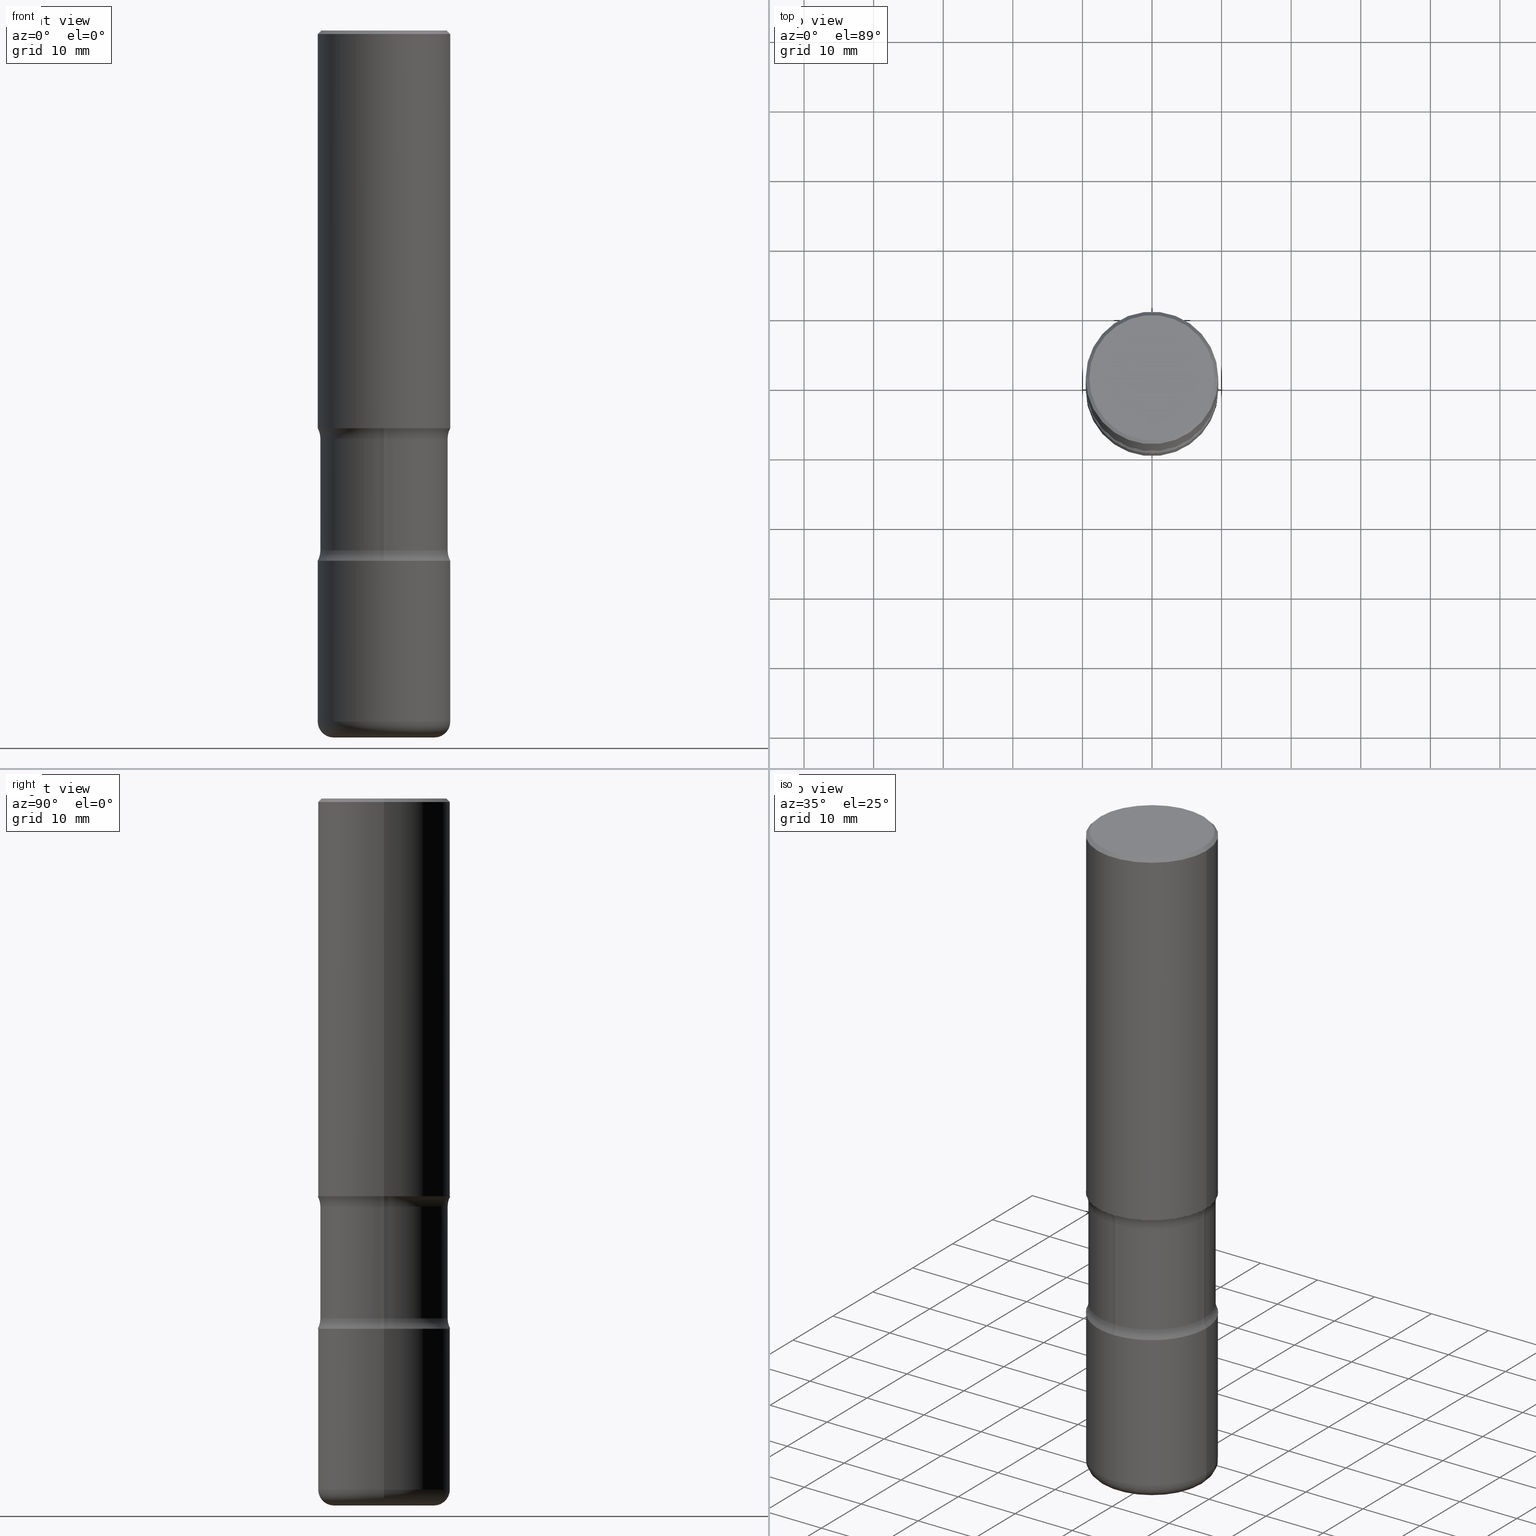
[diagram: canonical four-view strip — front | top / right | iso, engineering-drawing reading convention]
A machine part, canonical four-view strip (front | top / right | iso — engineering-drawing reading convention). The complete STEP part file that produces these views, byte-faithful:
ISO-10303-21;
HEADER;
FILE_DESCRIPTION (( 'STEP AP203' ),
    '1' );
FILE_NAME ('32793.STEP',
    '2023-03-11T07:02:13',
    ( '' ),
    ( '' ),
    'SwSTEP 2.0',
    'SolidWorks 2022',
    '' );
FILE_SCHEMA (( 'CONFIG_CONTROL_DESIGN' ));
ENDSEC;

DATA;
#1 = PLANE ( 'NONE',  #351 ) ;
#2 = VERTEX_POINT ( 'NONE', #105 ) ;
#3 = COORDINATED_UNIVERSAL_TIME_OFFSET ( 5, 0, .BEHIND. ) ;
#4 = CARTESIAN_POINT ( 'NONE',  ( 7.336406418555408669E-29, -1.047444401652943478E-14, -2.999999999999999556 ) ) ;
#5 = EDGE_LOOP ( 'NONE', ( #88, #518 ) ) ;
#6 = EDGE_CURVE ( 'NONE', #21, #424, #68, .T. ) ;
#7 = APPROVAL_DATE_TIME ( #683, #761 ) ;
#8 = EDGE_LOOP ( 'NONE', ( #194, #771 ) ) ;
#9 = FACE_OUTER_BOUND ( 'NONE', #256, .T. ) ;
#10 = CARTESIAN_POINT ( 'NONE',  ( -0.3749999999999996669, 2.548781377355484352E-15, -0.02000000000000008715 ) ) ;
#11 = CIRCLE ( 'NONE', #508, 0.08999999999999992728 ) ;
#12 = ORIENTED_EDGE ( 'NONE', *, *, #527, .F. ) ;
#13 = CARTESIAN_POINT ( 'NONE',  ( 9.561783032183883600E-29, -1.365169203487670064E-14, -3.910000000000000142 ) ) ;
#14 = APPROVAL ( #46, 'UNSPECIFIED' ) ;
#15 = CIRCLE ( 'NONE', #86, 0.3750000000000000555 ) ;
#16 = EDGE_LOOP ( 'NONE', ( #582, #457, #563, #536 ) ) ;
#17 = ORIENTED_EDGE ( 'NONE', *, *, #111, .T. ) ;
#18 = DIRECTION ( 'NONE',  ( 1.000000000000000000, -6.982962677686264344E-15, 0.000000000000000000 ) ) ;
#19 = DIRECTION ( 'NONE',  ( -2.445468806185136597E-29, 3.491481338843145583E-15, 1.000000000000000000 ) ) ;
#20 = ORIENTED_EDGE ( 'NONE', *, *, #423, .F. ) ;
#21 = VERTEX_POINT ( 'NONE', #598 ) ;
#22 = FACE_OUTER_BOUND ( 'NONE', #572, .T. ) ;
#23 = DIRECTION ( 'NONE',  ( 1.000000000000000000, -6.982962677686263555E-15, 4.883557194083111219E-29 ) ) ;
#24 = AXIS2_PLACEMENT_3D ( 'NONE', #757, #636, #803 ) ;
#25 = EDGE_CURVE ( 'NONE', #2, #510, #500, .T. ) ;
#26 = ORIENTED_EDGE ( 'NONE', *, *, #743, .F. ) ;
#27 = CARTESIAN_POINT ( 'NONE',  ( 5.646983439685339384E-29, -8.063862934017888990E-15, -2.309371710435190739 ) ) ;
#28 = DIRECTION ( 'NONE',  ( -2.445468806185136597E-29, 3.491481338843145583E-15, 1.000000000000000000 ) ) ;
#29 = AXIS2_PLACEMENT_3D ( 'NONE', #470, #589, #355 ) ;
#30 = EDGE_CURVE ( 'NONE', #273, #756, #685, .T. ) ;
#31 = VERTEX_POINT ( 'NONE', #409 ) ;
#32 = DIRECTION ( 'NONE',  ( 2.446211666097023826E-29, -3.490417521168362637E-15, -1.000000000000000000 ) ) ;
#33 = FACE_OUTER_BOUND ( 'NONE', #605, .T. ) ;
#34 = ADVANCED_FACE ( 'NONE', ( #665 ), #154, .F. ) ;
#35 = ORIENTED_EDGE ( 'NONE', *, *, #298, .T. ) ;
#36 = DIRECTION ( 'NONE',  ( -2.445468806185136877E-29, 3.491481338843145188E-15, 1.000000000000000000 ) ) ;
#37 = DIRECTION ( 'NONE',  ( 6.860497997771532351E-15, 1.000000000000000000, 0.000000000000000000 ) ) ;
#38 = VECTOR ( 'NONE', #436, 39.37007874015748143 ) ;
#39 = ORIENTED_EDGE ( 'NONE', *, *, #777, .F. ) ;
#40 = CIRCLE ( 'NONE', #626, 0.2850000000000000866 ) ;
#41 = DIRECTION ( 'NONE',  ( -2.445468806185136597E-29, 3.491481338843145583E-15, 1.000000000000000000 ) ) ;
#42 = DIRECTION ( 'NONE',  ( -2.438088387897960049E-29, 3.491481338843145188E-15, 1.000000000000000000 ) ) ;
#43 = DIRECTION ( 'NONE',  ( -1.000000000000000000, 6.982962677686266711E-15, 0.000000000000000000 ) ) ;
#44 = AXIS2_PLACEMENT_3D ( 'NONE', #713, #283, #530 ) ;
#45 = ORIENTED_EDGE ( 'NONE', *, *, #704, .F. ) ;
#46 = APPROVAL_STATUS ( 'not_yet_approved' ) ;
#47 = DIRECTION ( 'NONE',  ( 1.000000000000000000, -6.982962677686261189E-15, 0.000000000000000000 ) ) ;
#48 = EDGE_LOOP ( 'NONE', ( #197, #499, #503, #39 ) ) ;
#49 = CARTESIAN_POINT ( 'NONE',  ( -0.3749999999999999445, -1.098715677577632337E-14, -3.910000000000000142 ) ) ;
#50 = ORIENTED_EDGE ( 'NONE', *, *, #186, .T. ) ;
#51 = ADVANCED_FACE ( 'NONE', ( #593 ), #468, .T. ) ;
#52 = AXIS2_PLACEMENT_3D ( 'NONE', #422, #543, #47 ) ;
#53 = DIRECTION ( 'NONE',  ( 2.446211666097023826E-29, -3.490417521168362637E-15, -1.000000000000000000 ) ) ;
#54 = DIRECTION ( 'NONE',  ( -1.000000000000000000, 6.982962677686265922E-15, -4.883557194083112340E-29 ) ) ;
#55 = EDGE_CURVE ( 'NONE', #510, #570, #57, .T. ) ;
#56 =( NAMED_UNIT ( * ) SI_UNIT ( $, .STERADIAN. ) SOLID_ANGLE_UNIT ( ) );
#57 = CIRCLE ( 'NONE', #487, 0.1249999999999999584 ) ;
#58 = CIRCLE ( 'NONE', #268, 0.3599999999999995981 ) ;
#59 = DIRECTION ( 'NONE',  ( -2.445468806185136597E-29, 3.491481338843145583E-15, 1.000000000000000000 ) ) ;
#60 = CALENDAR_DATE ( 2023, 11, 3 ) ;
#61 = AXIS2_PLACEMENT_3D ( 'NONE', #27, #32, #647 ) ;
#62 = DIRECTION ( 'NONE',  ( -1.000000000000000000, 6.982962677686265922E-15, -4.876176775795935793E-29 ) ) ;
#63 = LOCAL_TIME ( 2, 2, 13.00000000000000000, #537 ) ;
#64 = DIRECTION ( 'NONE',  ( -2.445468806185136597E-29, 3.491481338843145583E-15, 1.000000000000000000 ) ) ;
#65 = CC_DESIGN_PERSON_AND_ORGANIZATION_ASSIGNMENT ( #373, #737, ( #372 ) ) ;
#66 = ORIENTED_EDGE ( 'NONE', *, *, #244, .F. ) ;
#67 = PERSON_AND_ORGANIZATION ( #191, #568 ) ;
#68 = CIRCLE ( 'NONE', #205, 0.3599999999999995981 ) ;
#69 = CARTESIAN_POINT ( 'NONE',  ( 4.246076239607680211E-18, -1.393574886465551026E-14, -3.991357109550793147 ) ) ;
#70 = AXIS2_PLACEMENT_3D ( 'NONE', #629, #64, #312 ) ;
#71 = EDGE_LOOP ( 'NONE', ( #564, #514, #94, #648 ) ) ;
#72 = CALENDAR_DATE ( 2023, 11, 3 ) ;
#73 = FACE_OUTER_BOUND ( 'NONE', #78, .T. ) ;
#74 = ORIENTED_EDGE ( 'NONE', *, *, #235, .T. ) ;
#75 = VERTEX_POINT ( 'NONE', #784 ) ;
#76 = DIRECTION ( 'NONE',  ( 1.000000000000000000, -6.982962677686268288E-15, 4.883557194083113462E-29 ) ) ;
#77 = CIRCLE ( 'NONE', #638, 0.2475000000000000810 ) ;
#78 = EDGE_LOOP ( 'NONE', ( #96, #577 ) ) ;
#79 = APPROVAL_PERSON_ORGANIZATION ( #356, #14, #600 ) ;
#80 = AXIS2_PLACEMENT_3D ( 'NONE', #331, #84, #255 ) ;
#81 = ADVANCED_FACE ( 'NONE', ( #217 ), #430, .T. ) ;
#82 = ORIENTED_EDGE ( 'NONE', *, *, #195, .F. ) ;
#83 = LINE ( 'NONE', #278, #106 ) ;
#84 = DIRECTION ( 'NONE',  ( -2.445468806185136597E-29, 3.491481338843145583E-15, 1.000000000000000000 ) ) ;
#85 = TOROIDAL_SURFACE ( 'NONE', #187, 0.2850000000000000311, 0.08999999999999992728 ) ;
#86 = AXIS2_PLACEMENT_3D ( 'NONE', #279, #53, #304 ) ;
#87 = ORIENTED_EDGE ( 'NONE', *, *, #179, .F. ) ;
#88 = ORIENTED_EDGE ( 'NONE', *, *, #365, .F. ) ;
#89 = ADVANCED_FACE ( 'NONE', ( #287 ), #85, .T. ) ;
#90 = CARTESIAN_POINT ( 'NONE',  ( 7.191214752716293962E-29, -1.026714879748976790E-14, -2.940628289564808817 ) ) ;
#91 = VERTEX_POINT ( 'NONE', #234 ) ;
#92 = ORIENTED_EDGE ( 'NONE', *, *, #122, .T. ) ;
#93 = DIRECTION ( 'NONE',  ( -2.445468806185136597E-29, 3.491481338843145583E-15, 1.000000000000000000 ) ) ;
#94 = ORIENTED_EDGE ( 'NONE', *, *, #483, .T. ) ;
#95 = CARTESIAN_POINT ( 'NONE',  ( 9.761475745206785133E-29, -1.393469424144034726E-14, -3.991357109550793147 ) ) ;
#96 = ORIENTED_EDGE ( 'NONE', *, *, #369, .F. ) ;
#97 = EDGE_CURVE ( 'NONE', #450, #99, #644, .T. ) ;
#98 = AXIS2_PLACEMENT_3D ( 'NONE', #477, #93, #590 ) ;
#99 = VERTEX_POINT ( 'NONE', #221 ) ;
#100 = DIRECTION ( 'NONE',  ( 1.000000000000000000, -6.982962677686268288E-15, 4.883557194083113462E-29 ) ) ;
#101 = CARTESIAN_POINT ( 'NONE',  ( 7.336406418555408669E-29, -1.047444401652943478E-14, -2.999999999999999556 ) ) ;
#102 = ORIENTED_EDGE ( 'NONE', *, *, #612, .T. ) ;
#103 = CARTESIAN_POINT ( 'NONE',  ( -2.469779279197650562E-15, -0.3600000000000135314, -3.991357109550792259 ) ) ;
#104 = FACE_OUTER_BOUND ( 'NONE', #5, .T. ) ;
#105 = CARTESIAN_POINT ( 'NONE',  ( 2.513866563967109106E-15, 0.3599999999999914935, -2.309371710435192071 ) ) ;
#106 = VECTOR ( 'NONE', #403, 39.37007874015748143 ) ;
#107 = CARTESIAN_POINT ( 'NONE',  ( 0.3749999999999996669, -2.642516375941185662E-15, -0.02000000000000008715 ) ) ;
#108 = CALENDAR_DATE ( 2023, 11, 3 ) ;
#109 = CARTESIAN_POINT ( 'NONE',  ( -3.327341528919118040E-15, -0.4850000000000098677, -2.940628289564807929 ) ) ;
#110 =( NAMED_UNIT ( * ) PLANE_ANGLE_UNIT ( ) SI_UNIT ( $, .RADIAN. ) );
#111 = EDGE_CURVE ( 'NONE', #269, #152, #513, .T. ) ;
#112 = DIRECTION ( 'NONE',  ( 7.105427357601001859E-15, 1.000000000000000000, -3.491481338843145583E-15 ) ) ;
#113 = DIRECTION ( 'NONE',  ( -2.445468806185136597E-29, 3.491481338843145583E-15, 1.000000000000000000 ) ) ;
#114 = COORDINATED_UNIVERSAL_TIME_OFFSET ( 5, 0, .BEHIND. ) ;
#115 = CARTESIAN_POINT ( 'NONE',  ( -0.3749999999999998335, 2.664535259100374514E-15, -1.844600658845588757E-29 ) ) ;
#116 = ADVANCED_FACE ( 'NONE', ( #33 ), #585, .T. ) ;
#117 = ORIENTED_EDGE ( 'NONE', *, *, #485, .T. ) ;
#118 = CIRCLE ( 'NONE', #61, 0.3599999999999995981 ) ;
#119 = DIRECTION ( 'NONE',  ( -1.000000000000000000, 6.982962677686266711E-15, 0.000000000000000000 ) ) ;
#120 = CIRCLE ( 'NONE', #289, 0.08999999999999992728 ) ;
#121 = CARTESIAN_POINT ( 'NONE',  ( -0.2474999999999993872, -1.223764209264523700E-14, -4.000000000000000888 ) ) ;
#122 = EDGE_CURVE ( 'NONE', #701, #570, #742, .T. ) ;
#123 = AXIS2_PLACEMENT_3D ( 'NONE', #534, #726, #580 ) ;
#124 = CIRCLE ( 'NONE', #539, 0.3750000000000000555 ) ;
#125 = CARTESIAN_POINT ( 'NONE',  ( 9.561783032183883600E-29, -1.365169203487670064E-14, -3.910000000000000142 ) ) ;
#126 = ORIENTED_EDGE ( 'NONE', *, *, #490, .F. ) ;
#127 = DATE_TIME_ROLE ( 'classification_date' ) ;
#128 = DIRECTION ( 'NONE',  ( -2.438088387897960049E-29, 3.491481338843145188E-15, 1.000000000000000000 ) ) ;
#129 = ORIENTED_EDGE ( 'NONE', *, *, #429, .F. ) ;
#130 = CIRCLE ( 'NONE', #581, 0.3599999999999996536 ) ;
#131 = CARTESIAN_POINT ( 'NONE',  ( 5.501747668982641921E-29, -7.856630875653164869E-15, -2.250000000000000000 ) ) ;
#132 = ORIENTED_EDGE ( 'NONE', *, *, #655, .T. ) ;
#133 = ORIENTED_EDGE ( 'NONE', *, *, #802, .F. ) ;
#134 = CARTESIAN_POINT ( 'NONE',  ( -0.2850000000000000311, -1.162664523796041410E-14, -3.910000000000000142 ) ) ;
#135 = CIRCLE ( 'NONE', #656, 0.3749999999999996669 ) ;
#136 = EDGE_CURVE ( 'NONE', #284, #230, #135, .T. ) ;
#137 = SECURITY_CLASSIFICATION_LEVEL ( 'unclassified' ) ;
#138 = VERTEX_POINT ( 'NONE', #162 ) ;
#139 = CARTESIAN_POINT ( 'NONE',  ( -2.521233014180980941E-15, -0.3600000000000076472, -2.309371710435189406 ) ) ;
#140 = EDGE_CURVE ( 'NONE', #75, #710, #150, .T. ) ;
#141 = EDGE_LOOP ( 'NONE', ( #576, #599, #635, #92 ) ) ;
#142 = DIRECTION ( 'NONE',  ( -1.000000000000000000, 6.982962677686265922E-15, -4.876176775795935793E-29 ) ) ;
#143 = AXIS2_PLACEMENT_3D ( 'NONE', #551, #305, #233 ) ;
#144 = ORIENTED_EDGE ( 'NONE', *, *, #743, .T. ) ;
#145 = AXIS2_PLACEMENT_3D ( 'NONE', #271, #762, #216 ) ;
#146 = ADVANCED_FACE ( 'NONE', ( #615 ), #253, .F. ) ;
#147 = ORIENTED_EDGE ( 'NONE', *, *, #30, .F. ) ;
#148 = DIRECTION ( 'NONE',  ( -2.445468806185136597E-29, 3.491481338843145583E-15, 1.000000000000000000 ) ) ;
#149 = CLOSED_SHELL ( 'NONE', ( #740, #392, #81, #719, #443, #516 ) ) ;
#150 = CIRCLE ( 'NONE', #587, 0.2850000000000000866 ) ;
#151 = ORIENTED_EDGE ( 'NONE', *, *, #569, .T. ) ;
#152 = VERTEX_POINT ( 'NONE', #498 ) ;
#153 = CARTESIAN_POINT ( 'NONE',  ( 0.3749999999999998335, -2.618611004132348439E-15, 1.828566290923475082E-29 ) ) ;
#154 = PLANE ( 'NONE',  #445 ) ;
#155 = DIRECTION ( 'NONE',  ( -2.445468806185136597E-29, 3.491481338843145583E-15, 1.000000000000000000 ) ) ;
#156 = CARTESIAN_POINT ( 'NONE',  ( -0.3749999999999996669, 2.548781377355484352E-15, -0.02000000000000008715 ) ) ;
#157 = CARTESIAN_POINT ( 'NONE',  ( 4.890937612370294178E-31, -6.982962677686321191E-17, -0.02000000000000008715 ) ) ;
#158 = AXIS2_PLACEMENT_3D ( 'NONE', #649, #776, #142 ) ;
#159 = ORIENTED_EDGE ( 'NONE', *, *, #666, .T. ) ;
#160 = LINE ( 'NONE', #153, #288 ) ;
#161 = DIRECTION ( 'NONE',  ( -2.445468806185136597E-29, 3.491481338843145583E-15, 1.000000000000000000 ) ) ;
#162 = CARTESIAN_POINT ( 'NONE',  ( -0.3750000000000000555, -9.398532766602692013E-15, -2.999999999999999556 ) ) ;
#163 = AXIS2_PLACEMENT_3D ( 'NONE', #506, #751, #398 ) ;
#164 = EDGE_CURVE ( 'NONE', #138, #318, #395, .T. ) ;
#165 = ORIENTED_EDGE ( 'NONE', *, *, #186, .F. ) ;
#166 = DIRECTION ( 'NONE',  ( 2.445468806185136597E-29, -3.491481338843145583E-15, -1.000000000000000000 ) ) ;
#167 = CARTESIAN_POINT ( 'NONE',  ( 5.502304813916557343E-29, -7.855833012397078448E-15, -2.250000000000000000 ) ) ;
#168 = EDGE_LOOP ( 'NONE', ( #20, #763, #368, #528 ) ) ;
#169 = DIRECTION ( 'NONE',  ( 6.982962677686265922E-15, 1.000000000000000000, -3.490417521168362637E-15 ) ) ;
#170 = CARTESIAN_POINT ( 'NONE',  ( 0.3749999999999999445, -1.309305502066178637E-14, -2.999999999999999556 ) ) ;
#171 = DIRECTION ( 'NONE',  ( 2.446211666097023826E-29, -3.490417521168362637E-15, -1.000000000000000000 ) ) ;
#172 = AXIS2_PLACEMENT_3D ( 'NONE', #367, #620, #301 ) ;
#173 = CIRCLE ( 'NONE', #495, 0.3750000000000000555 ) ;
#174 = VERTEX_POINT ( 'NONE', #243 ) ;
#175 = CARTESIAN_POINT ( 'NONE',  ( 7.191214752716295083E-29, -1.026714879748976948E-14, -2.940628289564809705 ) ) ;
#176 = CARTESIAN_POINT ( 'NONE',  ( 5.502304813916557343E-29, -7.855833012397078448E-15, -2.250000000000000000 ) ) ;
#177 = CARTESIAN_POINT ( 'NONE',  ( 1.060390387618594965E-27, -1.513956440947006113E-13, -43.36143584970827192 ) ) ;
#178 = LINE ( 'NONE', #115, #532 ) ;
#179 = EDGE_CURVE ( 'NONE', #2, #701, #248, .T. ) ;
#180 = UNCERTAINTY_MEASURE_WITH_UNIT (LENGTH_MEASURE( 1.000000000000000082E-05 ), #728, 'distance_accuracy_value', 'NONE');
#181 = PERSON_AND_ORGANIZATION_ROLE ( 'design_owner' ) ;
#182 = CARTESIAN_POINT ( 'NONE',  ( -0.3599999999999995981, -5.348236067998544144E-15, -2.309371710435190739 ) ) ;
#183 = AXIS2_PLACEMENT_3D ( 'NONE', #597, #42, #294 ) ;
#184 = DATE_AND_TIME ( #60, #765 ) ;
#185 = CARTESIAN_POINT ( 'NONE',  ( 5.502304813916557343E-29, -7.855833012397078448E-15, -2.250000000000000000 ) ) ;
#186 = EDGE_CURVE ( 'NONE', #322, #621, #669, .T. ) ;
#187 = AXIS2_PLACEMENT_3D ( 'NONE', #463, #295, #23 ) ;
#188 = CIRCLE ( 'NONE', #645, 0.3549999999999996492 ) ;
#189 = DIRECTION ( 'NONE',  ( 1.000000000000000000, -6.982962677686266711E-15, 0.000000000000000000 ) ) ;
#190 = CARTESIAN_POINT ( 'NONE',  ( 0.3599999999999995981, -1.036969957636413194E-14, -2.250000000000000000 ) ) ;
#191 = PERSON ( 'UNSPECIFIED', 'UNSPECIFIED', 'UNSPECIFIED', ('UNSPECIFIED'), ('UNSPECIFIED'), ('UNSPECIFIED') ) ;
#192 = CYLINDRICAL_SURFACE ( 'NONE', #163, 0.3599999999999995981 ) ;
#193 = CIRCLE ( 'NONE', #465, 0.3750000000000000555 ) ;
#194 = ORIENTED_EDGE ( 'NONE', *, *, #550, .T. ) ;
#195 = EDGE_CURVE ( 'NONE', #520, #230, #575, .T. ) ;
#196 = AXIS2_PLACEMENT_3D ( 'NONE', #678, #54, #642 ) ;
#197 = ORIENTED_EDGE ( 'NONE', *, *, #140, .T. ) ;
#198 = FACE_OUTER_BOUND ( 'NONE', #686, .T. ) ;
#199 = EDGE_CURVE ( 'NONE', #346, #420, #427, .T. ) ;
#200 = CIRCLE ( 'NONE', #400, 0.1250000000000000278 ) ;
#201 = ORIENTED_EDGE ( 'NONE', *, *, #423, .T. ) ;
#202 = SHAPE_DEFINITION_REPRESENTATION ( #535, #236 ) ;
#203 = VERTEX_POINT ( 'NONE', #259 ) ;
#204 = DIRECTION ( 'NONE',  ( -1.000000000000000000, 6.982962677686265922E-15, -4.883557194083112340E-29 ) ) ;
#205 = AXIS2_PLACEMENT_3D ( 'NONE', #350, #459, #660 ) ;
#206 = EDGE_CURVE ( 'NONE', #152, #269, #471, .T. ) ;
#207 = CARTESIAN_POINT ( 'NONE',  ( 9.781875224740547508E-29, -1.396592535537258391E-14, -4.000000000000000888 ) ) ;
#208 = EDGE_CURVE ( 'NONE', #318, #138, #799, .T. ) ;
#209 = ORIENTED_EDGE ( 'NONE', *, *, #666, .F. ) ;
#210 = ORIENTED_EDGE ( 'NONE', *, *, #262, .T. ) ;
#211 = CARTESIAN_POINT ( 'NONE',  ( -0.4849999999999995981, -6.821016529053286828E-15, -2.940628289564809705 ) ) ;
#212 = AXIS2_PLACEMENT_3D ( 'NONE', #505, #204, #627 ) ;
#213 = EDGE_LOOP ( 'NONE', ( #453, #218, #625, #332 ) ) ;
#214 = CC_DESIGN_PERSON_AND_ORGANIZATION_ASSIGNMENT ( #418, #675, ( #748 ) ) ;
#215 = ORIENTED_EDGE ( 'NONE', *, *, #802, .T. ) ;
#216 = DIRECTION ( 'NONE',  ( 1.000000000000000000, -6.982962677686265922E-15, 4.876176775795935793E-29 ) ) ;
#217 = FACE_OUTER_BOUND ( 'NONE', #168, .T. ) ;
#218 = ORIENTED_EDGE ( 'NONE', *, *, #341, .T. ) ;
#219 = DIRECTION ( 'NONE',  ( 2.445468806185136597E-29, -3.491481338843145583E-15, -1.000000000000000000 ) ) ;
#220 = MANIFOLD_SOLID_BREP ( 'Body-Move/Copy2[3]', #314 ) ;
#221 = CARTESIAN_POINT ( 'NONE',  ( 0.3750000000000000555, -1.047444401652942689E-14, -2.250000000000000000 ) ) ;
#222 = ORIENTED_EDGE ( 'NONE', *, *, #208, .T. ) ;
#223 = DIRECTION ( 'NONE',  ( 1.000000000000000000, -6.982962677686269077E-15, 0.000000000000000000 ) ) ;
#224 = ORIENTED_EDGE ( 'NONE', *, *, #208, .F. ) ;
#225 = AXIS2_PLACEMENT_3D ( 'NONE', #342, #397, #334 ) ;
#226 = LOCAL_TIME ( 2, 2, 13.00000000000000000, #3 ) ;
#227 = PRODUCT ( '32793', '32793', '', ( #347 ) ) ;
#228 = CARTESIAN_POINT ( 'NONE',  ( 7.336406418555408669E-29, -1.047444401652943478E-14, -2.999999999999999556 ) ) ;
#229 = ADVANCED_FACE ( 'NONE', ( #745 ), #192, .T. ) ;
#230 = VERTEX_POINT ( 'NONE', #156 ) ;
#231 = DATE_AND_TIME ( #108, #63 ) ;
#232 = CARTESIAN_POINT ( 'NONE',  ( 5.647496479755672050E-29, -8.063128231436745322E-15, -2.309371710435190739 ) ) ;
#233 = DIRECTION ( 'NONE',  ( 6.982962677686265922E-15, 1.000000000000000000, -3.490417521168362637E-15 ) ) ;
#234 = CARTESIAN_POINT ( 'NONE',  ( -0.3750000000000000555, -5.191297753296701174E-15, -2.250000000000000000 ) ) ;
#235 = EDGE_CURVE ( 'NONE', #510, #152, #584, .T. ) ;
#236 = ADVANCED_BREP_SHAPE_REPRESENTATION ( '32793', ( #462, #731, #220, #473, #739 ), #308 ) ;
#237 = APPLICATION_PROTOCOL_DEFINITION ( 'international standard', 'config_control_design', 1994, #432 ) ;
#238 = DIRECTION ( 'NONE',  ( -2.445468806185136597E-29, 3.491481338843145583E-15, 1.000000000000000000 ) ) ;
#239 = DESIGN_CONTEXT ( 'detailed design', #698, 'design' ) ;
#240 = AXIS2_PLACEMENT_3D ( 'NONE', #497, #128, #433 ) ;
#241 = DIRECTION ( 'NONE',  ( 1.000000000000000000, 0.000000000000000000, 0.000000000000000000 ) ) ;
#242 = DIRECTION ( 'NONE',  ( -1.000000000000000000, 7.105427357601001859E-15, 0.000000000000000000 ) ) ;
#243 = CARTESIAN_POINT ( 'NONE',  ( 0.3750000000000000555, -1.047444401652942689E-14, -2.250000000000000000 ) ) ;
#244 = EDGE_CURVE ( 'NONE', #375, #542, #657, .T. ) ;
#245 = CARTESIAN_POINT ( 'NONE',  ( 9.781875224740546387E-29, -1.396592535537258233E-14, -4.000000000000000000 ) ) ;
#246 = CARTESIAN_POINT ( 'NONE',  ( -0.3599999999999996536, -7.759551853091235175E-15, -2.940628289564808817 ) ) ;
#247 = DIRECTION ( 'NONE',  ( -2.445468806185136597E-29, 3.491481338843145583E-15, 1.000000000000000000 ) ) ;
#248 = CIRCLE ( 'NONE', #196, 0.1249999999999999584 ) ;
#249 = AXIS2_PLACEMENT_3D ( 'NONE', #125, #59, #189 ) ;
#250 = PLANE ( 'NONE',  #240 ) ;
#251 = DIRECTION ( 'NONE',  ( 1.000000000000000000, -6.982962677686265133E-15, 0.000000000000000000 ) ) ;
#252 = COORDINATED_UNIVERSAL_TIME_OFFSET ( 5, 0, .BEHIND. ) ;
#253 = TOROIDAL_SURFACE ( 'NONE', #172, 0.4849999999999995426, 0.1249999999999999584 ) ;
#254 = CARTESIAN_POINT ( 'NONE',  ( 0.3599999999999996536, -1.278101536145682139E-14, -2.940628289564808817 ) ) ;
#255 = DIRECTION ( 'NONE',  ( 1.000000000000000000, -6.982962677686269077E-15, 0.000000000000000000 ) ) ;
#256 = EDGE_LOOP ( 'NONE', ( #746, #386, #766, #560 ) ) ;
#257 = ADVANCED_FACE ( 'NONE', ( #404 ), #630, .F. ) ;
#258 = FACE_OUTER_BOUND ( 'NONE', #689, .T. ) ;
#259 = CARTESIAN_POINT ( 'NONE',  ( 0.3549999999999996492, -2.538996582575038287E-15, 4.268512490117958041E-18 ) ) ;
#260 = EDGE_LOOP ( 'NONE', ( #26, #209, #328, #438 ) ) ;
#261 = DIRECTION ( 'NONE',  ( -2.445468806185136597E-29, 3.491481338843145583E-15, 1.000000000000000000 ) ) ;
#262 = EDGE_CURVE ( 'NONE', #174, #21, #405, .T. ) ;
#263 = CIRCLE ( 'NONE', #52, 0.1250000000000000278 ) ;
#264 = CYLINDRICAL_SURFACE ( 'NONE', #681, 0.3749999999999998335 ) ;
#265 = EDGE_LOOP ( 'NONE', ( #663, #507, #353, #87 ) ) ;
#266 = EDGE_CURVE ( 'NONE', #424, #21, #58, .T. ) ;
#267 = DIRECTION ( 'NONE',  ( 6.982962677686265922E-15, 1.000000000000000000, -3.642463991552350169E-15 ) ) ;
#268 = AXIS2_PLACEMENT_3D ( 'NONE', #232, #475, #390 ) ;
#269 = VERTEX_POINT ( 'NONE', #579 ) ;
#270 = ORIENTED_EDGE ( 'NONE', *, *, #319, .T. ) ;
#271 = CARTESIAN_POINT ( 'NONE',  ( 0.000000000000000000, 0.000000000000000000, 0.000000000000000000 ) ) ;
#272 = CARTESIAN_POINT ( 'NONE',  ( 7.191170647852711206E-29, -1.026721195816471065E-14, -2.940628289564808817 ) ) ;
#273 = VERTEX_POINT ( 'NONE', #650 ) ;
#274 = ORIENTED_EDGE ( 'NONE', *, *, #735, .T. ) ;
#275 = CYLINDRICAL_SURFACE ( 'NONE', #414, 0.3599999999999995981 ) ;
#276 = VECTOR ( 'NONE', #791, 39.37007874015748143 ) ;
#277 = ORIENTED_EDGE ( 'NONE', *, *, #655, .F. ) ;
#278 = CARTESIAN_POINT ( 'NONE',  ( -4.246076239412465641E-18, -1.393574886465551026E-14, -3.991357109550793147 ) ) ;
#279 = CARTESIAN_POINT ( 'NONE',  ( 7.336406418555408669E-29, -1.047444401652943478E-14, -2.999999999999999556 ) ) ;
#280 = AXIS2_PLACEMENT_3D ( 'NONE', #343, #41, #335 ) ;
#281 = DIRECTION ( 'NONE',  ( 6.982962677686265133E-15, 1.000000000000000000, -3.794233324533703056E-15 ) ) ;
#282 = CARTESIAN_POINT ( 'NONE',  ( 2.618611004132404842E-15, 0.3749999999999921729, -2.250000000000001332 ) ) ;
#283 = DIRECTION ( 'NONE',  ( 2.446211666097023826E-29, -3.490417521168362637E-15, -1.000000000000000000 ) ) ;
#284 = VERTEX_POINT ( 'NONE', #107 ) ;
#285 = FACE_OUTER_BOUND ( 'NONE', #8, .T. ) ;
#286 = ADVANCED_FACE ( 'NONE', ( #736 ), #720, .F. ) ;
#287 = FACE_OUTER_BOUND ( 'NONE', #749, .T. ) ;
#288 = VECTOR ( 'NONE', #36, 39.37007874015748143 ) ;
#289 = AXIS2_PLACEMENT_3D ( 'NONE', #362, #613, #299 ) ;
#290 = ORIENTED_EDGE ( 'NONE', *, *, #730, .F. ) ;
#291 = DIRECTION ( 'NONE',  ( -2.445468806185136597E-29, 3.491481338843145583E-15, 1.000000000000000000 ) ) ;
#292 = DIRECTION ( 'NONE',  ( 2.446211666097023545E-29, -3.490417521168362243E-15, -1.000000000000000000 ) ) ;
#293 = ADVANCED_FACE ( 'NONE', ( #604 ), #364, .T. ) ;
#294 = DIRECTION ( 'NONE',  ( 1.000000000000000000, -6.982962677686265922E-15, 4.876176775795935793E-29 ) ) ;
#295 = DIRECTION ( 'NONE',  ( -2.445468806185136597E-29, 3.491481338843145583E-15, 1.000000000000000000 ) ) ;
#296 = AXIS2_PLACEMENT_3D ( 'NONE', #524, #28, #718 ) ;
#297 = DIRECTION ( 'NONE',  ( -2.445468806185136597E-29, 3.491481338843145583E-15, 1.000000000000000000 ) ) ;
#298 = EDGE_CURVE ( 'NONE', #756, #273, #15, .T. ) ;
#299 = DIRECTION ( 'NONE',  ( 1.000000000000000000, -6.982962677686273810E-15, 0.000000000000000000 ) ) ;
#300 = FACE_OUTER_BOUND ( 'NONE', #715, .T. ) ;
#301 = DIRECTION ( 'NONE',  ( 6.982962677686265922E-15, 1.000000000000000000, -3.490417521168362637E-15 ) ) ;
#302 = AXIS2_PLACEMENT_3D ( 'NONE', #95, #460, #525 ) ;
#303 = FACE_OUTER_BOUND ( 'NONE', #213, .T. ) ;
#304 = DIRECTION ( 'NONE',  ( 6.982962677686265922E-15, 1.000000000000000000, -2.913971193241880372E-15 ) ) ;
#305 = DIRECTION ( 'NONE',  ( 2.446211666097023826E-29, -3.490417521168362637E-15, -1.000000000000000000 ) ) ;
#306 = FACE_OUTER_BOUND ( 'NONE', #336, .T. ) ;
#307 = CIRCLE ( 'NONE', #703, 0.3750000000000000555 ) ;
#308 =( GEOMETRIC_REPRESENTATION_CONTEXT ( 3 ) GLOBAL_UNCERTAINTY_ASSIGNED_CONTEXT ( ( #180 ) ) GLOBAL_UNIT_ASSIGNED_CONTEXT ( ( #728, #110, #56 ) ) REPRESENTATION_CONTEXT ( 'NONE', 'WORKASPACE' ) );
#309 = TOROIDAL_SURFACE ( 'NONE', #440, 0.4849999999999995981, 0.1250000000000000000 ) ;
#310 = CYLINDRICAL_SURFACE ( 'NONE', #302, 0.3599999999999995981 ) ;
#311 = ADVANCED_FACE ( 'NONE', ( #480 ), #729, .T. ) ;
#312 = DIRECTION ( 'NONE',  ( 1.000000000000000000, -6.982962677686266711E-15, 0.000000000000000000 ) ) ;
#313 = ORIENTED_EDGE ( 'NONE', *, *, #323, .F. ) ;
#314 = CLOSED_SHELL ( 'NONE', ( #311, #286, #674, #548, #51, #466, #257, #229 ) ) ;
#315 = PERSON_AND_ORGANIZATION_ROLE ( 'classification_officer' ) ;
#316 = ORIENTED_EDGE ( 'NONE', *, *, #136, .F. ) ;
#317 = DIRECTION ( 'NONE',  ( 0.9993908270190957621, -6.978169709227539121E-15, -0.03489949670250019204 ) ) ;
#318 = VERTEX_POINT ( 'NONE', #680 ) ;
#319 = EDGE_CURVE ( 'NONE', #174, #91, #124, .T. ) ;
#320 = CARTESIAN_POINT ( 'NONE',  ( -0.3599999999999995981, -5.297879163660720240E-15, -2.250000000000000000 ) ) ;
#321 = CARTESIAN_POINT ( 'NONE',  ( 9.561783032183883600E-29, -1.365169203487670064E-14, -3.910000000000000142 ) ) ;
#322 = VERTEX_POINT ( 'NONE', #121 ) ;
#323 = EDGE_CURVE ( 'NONE', #203, #520, #188, .T. ) ;
#324 = CIRCLE ( 'NONE', #24, 0.3549999999999996492 ) ;
#325 = LINE ( 'NONE', #320, #521 ) ;
#326 = CC_DESIGN_SECURITY_CLASSIFICATION ( #352, ( #372 ) ) ;
#327 = ORIENTED_EDGE ( 'NONE', *, *, #402, .T. ) ;
#328 = ORIENTED_EDGE ( 'NONE', *, *, #429, .T. ) ;
#329 = DIRECTION ( 'NONE',  ( -2.445468806185136597E-29, 3.491481338843145583E-15, 1.000000000000000000 ) ) ;
#330 = CC_DESIGN_PERSON_AND_ORGANIZATION_ASSIGNMENT ( #380, #315, ( #352 ) ) ;
#331 = CARTESIAN_POINT ( 'NONE',  ( 9.781875224740547508E-29, -1.396592535537258391E-14, -4.000000000000000888 ) ) ;
#332 = ORIENTED_EDGE ( 'NONE', *, *, #569, .F. ) ;
#333 = EDGE_LOOP ( 'NONE', ( #45, #723, #417, #637 ) ) ;
#334 = DIRECTION ( 'NONE',  ( 6.982962677686265922E-15, 1.000000000000000000, -3.490417521168362637E-15 ) ) ;
#335 = DIRECTION ( 'NONE',  ( 1.000000000000000000, -6.982962677686266711E-15, 4.883557194083112901E-29 ) ) ;
#336 = EDGE_LOOP ( 'NONE', ( #707, #133 ) ) ;
#337 = EDGE_LOOP ( 'NONE', ( #591, #35 ) ) ;
#338 = CONICAL_SURFACE ( 'NONE', #804, 1127.411546571505596, 1.535889741755010807 ) ;
#339 = CARTESIAN_POINT ( 'NONE',  ( 7.336406418555408669E-29, -1.047444401652943478E-14, -2.999999999999999556 ) ) ;
#340 = DIRECTION ( 'NONE',  ( 1.000000000000000000, -6.982962677686265922E-15, 4.876176775795935793E-29 ) ) ;
#341 = EDGE_CURVE ( 'NONE', #756, #152, #501, .T. ) ;
#342 = CARTESIAN_POINT ( 'NONE',  ( 5.647496479755672050E-29, -8.063128231436743744E-15, -2.309371710435190295 ) ) ;
#343 = CARTESIAN_POINT ( 'NONE',  ( 7.191214752716295083E-29, -1.026714879748976948E-14, -2.940628289564809705 ) ) ;
#344 = DIRECTION ( 'NONE',  ( -1.000000000000000000, 6.982962677686265922E-15, -4.876176775795935793E-29 ) ) ;
#345 = EDGE_CURVE ( 'NONE', #91, #424, #565, .T. ) ;
#346 = VERTEX_POINT ( 'NONE', #413 ) ;
#347 = MECHANICAL_CONTEXT ( 'NONE', #432, 'mechanical' ) ;
#348 = CARTESIAN_POINT ( 'NONE',  ( 7.191214752716293962E-29, -1.026714879748976790E-14, -2.940628289564808817 ) ) ;
#349 = PLANE ( 'NONE',  #183 ) ;
#350 = CARTESIAN_POINT ( 'NONE',  ( 5.647496479755672050E-29, -8.063128231436745322E-15, -2.309371710435190739 ) ) ;
#351 = AXIS2_PLACEMENT_3D ( 'NONE', #4, #566, #62 ) ;
#352 = SECURITY_CLASSIFICATION ( '', '', #137 ) ;
#353 = ORIENTED_EDGE ( 'NONE', *, *, #494, .T. ) ;
#354 = DIRECTION ( 'NONE',  ( 1.000000000000000000, -6.982962677686265922E-15, 4.876231632511992667E-29 ) ) ;
#355 = DIRECTION ( 'NONE',  ( 1.000000000000000000, -6.982962677686266711E-15, 4.883557194083112901E-29 ) ) ;
#356 = PERSON_AND_ORGANIZATION ( #191, #568 ) ;
#357 = CARTESIAN_POINT ( 'NONE',  ( 4.890937612370294178E-31, -6.982962677686321191E-17, -0.02000000000000008715 ) ) ;
#358 = EDGE_LOOP ( 'NONE', ( #159, #117, #693, #415 ) ) ;
#359 =( LENGTH_UNIT ( ) NAMED_UNIT ( * ) SI_UNIT ( $, .METRE. ) );
#360 = DIRECTION ( 'NONE',  ( -2.445468806185136597E-29, 3.491481338843145583E-15, 1.000000000000000000 ) ) ;
#361 = CIRCLE ( 'NONE', #399, 0.3750000000000000555 ) ;
#362 = CARTESIAN_POINT ( 'NONE',  ( 0.2850000000000000311, -1.564183639801728729E-14, -3.910000000000000142 ) ) ;
#363 = DIRECTION ( 'NONE',  ( 1.000000000000000000, -6.982962677686266711E-15, 0.000000000000000000 ) ) ;
#364 = TOROIDAL_SURFACE ( 'NONE', #431, 0.2850000000000000311, 0.08999999999999992728 ) ;
#365 = EDGE_CURVE ( 'NONE', #99, #450, #193, .T. ) ;
#366 = DIRECTION ( 'NONE',  ( 1.000000000000000000, -6.982962677686266711E-15, 0.000000000000000000 ) ) ;
#367 = CARTESIAN_POINT ( 'NONE',  ( 5.647496479755672050E-29, -8.063128231436743744E-15, -2.309371710435190295 ) ) ;
#368 = ORIENTED_EDGE ( 'NONE', *, *, #195, .T. ) ;
#369 = EDGE_CURVE ( 'NONE', #420, #346, #307, .T. ) ;
#370 = CARTESIAN_POINT ( 'NONE',  ( 0.3750000000000000555, -2.618611004132350016E-15, 1.828566290923476203E-29 ) ) ;
#371 = TOROIDAL_SURFACE ( 'NONE', #554, 0.4849999999999995426, 0.1249999999999999584 ) ;
#372 = PRODUCT_DEFINITION_FORMATION_WITH_SPECIFIED_SOURCE ( 'ANY', '', #227, .NOT_KNOWN. ) ;
#373 = PERSON_AND_ORGANIZATION ( #191, #568 ) ;
#374 = DIRECTION ( 'NONE',  ( 6.982962677686265133E-15, 1.000000000000000000, -3.035386659626961893E-15 ) ) ;
#375 = VERTEX_POINT ( 'NONE', #246 ) ;
#376 = AXIS2_PLACEMENT_3D ( 'NONE', #782, #538, #787 ) ;
#377 = LINE ( 'NONE', #370, #546 ) ;
#378 = ADVANCED_FACE ( 'NONE', ( #614 ), #667, .F. ) ;
#379 = VERTEX_POINT ( 'NONE', #610 ) ;
#380 = PERSON_AND_ORGANIZATION ( #191, #568 ) ;
#381 = DIRECTION ( 'NONE',  ( -2.445468806185136877E-29, 3.491481338843145188E-15, 1.000000000000000000 ) ) ;
#382 = ORIENTED_EDGE ( 'NONE', *, *, #25, .T. ) ;
#383 = EDGE_LOOP ( 'NONE', ( #277, #558, #165 ) ) ;
#384 = VECTOR ( 'NONE', #603, 39.37007874015748854 ) ;
#385 = CARTESIAN_POINT ( 'NONE',  ( 1.060390387618594965E-27, -1.513956440947006113E-13, -43.36143584970827192 ) ) ;
#386 = ORIENTED_EDGE ( 'NONE', *, *, #97, .T. ) ;
#387 = FACE_OUTER_BOUND ( 'NONE', #383, .T. ) ;
#388 = AXIS2_PLACEMENT_3D ( 'NONE', #768, #171, #281 ) ;
#389 = AXIS2_PLACEMENT_3D ( 'NONE', #185, #360, #725 ) ;
#390 = DIRECTION ( 'NONE',  ( 1.000000000000000000, -6.982962677686267499E-15, 0.000000000000000000 ) ) ;
#391 = ORIENTED_EDGE ( 'NONE', *, *, #122, .F. ) ;
#392 = ADVANCED_FACE ( 'NONE', ( #732 ), #692, .T. ) ;
#393 = CARTESIAN_POINT ( 'NONE',  ( -0.2850000000000000866, -1.146401766711631116E-14, -4.000000000000000000 ) ) ;
#394 = DIRECTION ( 'NONE',  ( 1.000000000000000000, -6.860497997771530774E-15, 4.840811907633245906E-29 ) ) ;
#395 = CIRCLE ( 'NONE', #478, 0.3750000000000000555 ) ;
#396 = EDGE_LOOP ( 'NONE', ( #222, #654 ) ) ;
#397 = DIRECTION ( 'NONE',  ( 2.446211666097023826E-29, -3.490417521168362637E-15, -1.000000000000000000 ) ) ;
#398 = DIRECTION ( 'NONE',  ( 1.000000000000000000, -6.982962677686267499E-15, 0.000000000000000000 ) ) ;
#399 = AXIS2_PLACEMENT_3D ( 'NONE', #529, #717, #523 ) ;
#400 = AXIS2_PLACEMENT_3D ( 'NONE', #211, #455, #709 ) ;
#401 = DIRECTION ( 'NONE',  ( -2.445468806185136597E-29, 3.491481338843145583E-15, 1.000000000000000000 ) ) ;
#402 = EDGE_CURVE ( 'NONE', #450, #230, #178, .T. ) ;
#403 = DIRECTION ( 'NONE',  ( -0.9993908270190957621, 6.856857904024558837E-15, -0.03489949670250019204 ) ) ;
#404 = FACE_OUTER_BOUND ( 'NONE', #260, .T. ) ;
#405 = CIRCLE ( 'NONE', #376, 0.1249999999999999584 ) ;
#406 = DIRECTION ( 'NONE',  ( 2.446211666097023826E-29, -3.490417521168362637E-15, -1.000000000000000000 ) ) ;
#407 = ORIENTED_EDGE ( 'NONE', *, *, #319, .F. ) ;
#408 = DIRECTION ( 'NONE',  ( 1.000000000000000000, -6.982962677686264344E-15, 0.000000000000000000 ) ) ;
#409 = CARTESIAN_POINT ( 'NONE',  ( 0.3749999999999999445, -1.627030303900905066E-14, -3.910000000000000142 ) ) ;
#410 = VERTEX_POINT ( 'NONE', #49 ) ;
#411 = ADVANCED_FACE ( 'NONE', ( #300 ), #493, .T. ) ;
#412 = PERSON_AND_ORGANIZATION ( #191, #568 ) ;
#413 = CARTESIAN_POINT ( 'NONE',  ( -0.3749999999999999445, -7.809908757429059079E-15, -2.999999999999999556 ) ) ;
#414 = AXIS2_PLACEMENT_3D ( 'NONE', #659, #519, #773 ) ;
#415 = ORIENTED_EDGE ( 'NONE', *, *, #483, .F. ) ;
#416 = DIRECTION ( 'NONE',  ( 1.000000000000000000, -6.982962677686264344E-15, 0.000000000000000000 ) ) ;
#417 = ORIENTED_EDGE ( 'NONE', *, *, #266, .T. ) ;
#418 = PERSON_AND_ORGANIZATION ( #191, #568 ) ;
#419 = DIRECTION ( 'NONE',  ( 1.000000000000000000, -6.860497997771530774E-15, 4.840811907633245906E-29 ) ) ;
#420 = VERTEX_POINT ( 'NONE', #170 ) ;
#421 = DATE_TIME_ROLE ( 'creation_date' ) ;
#422 = CARTESIAN_POINT ( 'NONE',  ( 0.4849999999999995981, -1.365388569616760789E-14, -2.940628289564809705 ) ) ;
#423 = EDGE_CURVE ( 'NONE', #203, #284, #795, .T. ) ;
#424 = VERTEX_POINT ( 'NONE', #182 ) ;
#425 = VECTOR ( 'NONE', #531, 39.37007874015748143 ) ;
#426 = APPROVAL_STATUS ( 'not_yet_approved' ) ;
#427 = CIRCLE ( 'NONE', #512, 0.3750000000000000555 ) ;
#428 = CARTESIAN_POINT ( 'NONE',  ( 5.502304813916557343E-29, -7.855833012397078448E-15, -2.250000000000000000 ) ) ;
#429 = EDGE_CURVE ( 'NONE', #542, #420, #263, .T. ) ;
#430 = CONICAL_SURFACE ( 'NONE', #708, 0.3749999999999996669, 0.7853981633974476129 ) ;
#431 = AXIS2_PLACEMENT_3D ( 'NONE', #321, #261, #783 ) ;
#432 = APPLICATION_CONTEXT ( 'configuration controlled 3d designs of mechanical parts and assemblies' ) ;
#433 = DIRECTION ( 'NONE',  ( 1.000000000000000000, -6.982962677686265922E-15, 4.876176775795935793E-29 ) ) ;
#434 = PERSON_AND_ORGANIZATION_ROLE ( 'design_supplier' ) ;
#435 = CC_DESIGN_DATE_AND_TIME_ASSIGNMENT ( #609, #421, ( #748 ) ) ;
#436 = DIRECTION ( 'NONE',  ( -2.445468806185136877E-29, 3.491481338843145188E-15, 1.000000000000000000 ) ) ;
#437 = DIRECTION ( 'NONE',  ( -0.7071067811865469066, 2.468850131082251144E-15, -0.7071067811865479058 ) ) ;
#438 = ORIENTED_EDGE ( 'NONE', *, *, #369, .T. ) ;
#439 = AXIS2_PLACEMENT_3D ( 'NONE', #711, #155, #100 ) ;
#440 = AXIS2_PLACEMENT_3D ( 'NONE', #175, #488, #169 ) ;
#441 = APPROVAL_ROLE ( '' ) ;
#442 = EDGE_LOOP ( 'NONE', ( #522, #132, #517 ) ) ;
#443 = ADVANCED_FACE ( 'NONE', ( #104 ), #349, .F. ) ;
#444 = DIRECTION ( 'NONE',  ( -2.445468806185136597E-29, 3.491481338843145583E-15, 1.000000000000000000 ) ) ;
#445 = AXIS2_PLACEMENT_3D ( 'NONE', #101, #472, #344 ) ;
#446 = ORIENTED_EDGE ( 'NONE', *, *, #111, .F. ) ;
#447 = CARTESIAN_POINT ( 'NONE',  ( 5.647496479755672050E-29, -8.063128231436743744E-15, -2.309371710435190295 ) ) ;
#448 = EDGE_LOOP ( 'NONE', ( #50, #274 ) ) ;
#449 = APPROVAL ( #426, 'UNSPECIFIED' ) ;
#450 = VERTEX_POINT ( 'NONE', #540 ) ;
#451 = CYLINDRICAL_SURFACE ( 'NONE', #145, 0.3749999999999998335 ) ;
#452 = ORIENTED_EDGE ( 'NONE', *, *, #490, .T. ) ;
#453 = ORIENTED_EDGE ( 'NONE', *, *, #298, .F. ) ;
#454 = AXIS2_PLACEMENT_3D ( 'NONE', #428, #695, #561 ) ;
#455 = DIRECTION ( 'NONE',  ( 7.105427357601001859E-15, 1.000000000000000000, -3.491481338843145583E-15 ) ) ;
#456 = ORIENTED_EDGE ( 'NONE', *, *, #6, .T. ) ;
#457 = ORIENTED_EDGE ( 'NONE', *, *, #662, .T. ) ;
#458 = FACE_OUTER_BOUND ( 'NONE', #333, .T. ) ;
#459 = DIRECTION ( 'NONE',  ( -2.445468806185136597E-29, 3.491481338843145583E-15, 1.000000000000000000 ) ) ;
#460 = DIRECTION ( 'NONE',  ( 2.446211666097023826E-29, -3.490417521168362637E-15, -1.000000000000000000 ) ) ;
#461 = EDGE_CURVE ( 'NONE', #230, #284, #652, .T. ) ;
#462 = MANIFOLD_SOLID_BREP ( 'Body-Move/Copy2[1]', #672 ) ;
#463 = CARTESIAN_POINT ( 'NONE',  ( 9.561783032183883600E-29, -1.365169203487670064E-14, -3.910000000000000142 ) ) ;
#464 = DIRECTION ( 'NONE',  ( -1.000000000000000000, 6.982962677686266711E-15, 0.000000000000000000 ) ) ;
#465 = AXIS2_PLACEMENT_3D ( 'NONE', #176, #247, #486 ) ;
#466 = ADVANCED_FACE ( 'NONE', ( #73 ), #1, .T. ) ;
#467 = LOCAL_TIME ( 2, 2, 13.00000000000000000, #114 ) ;
#468 = PLANE ( 'NONE',  #602 ) ;
#469 = CARTESIAN_POINT ( 'NONE',  ( 0.000000000000000000, 0.000000000000000000, 0.000000000000000000 ) ) ;
#470 = CARTESIAN_POINT ( 'NONE',  ( 7.191214752716295083E-29, -1.026714879748976948E-14, -2.940628289564809705 ) ) ;
#471 = CIRCLE ( 'NONE', #646, 0.3599999999999996536 ) ;
#472 = DIRECTION ( 'NONE',  ( 2.438088387897960049E-29, -3.491481338843145188E-15, -1.000000000000000000 ) ) ;
#473 = MANIFOLD_SOLID_BREP ( 'Body-Move/Copy2[4]', #769 ) ;
#474 = APPROVAL_DATE_TIME ( #231, #14 ) ;
#475 = DIRECTION ( 'NONE',  ( -2.445468806185136597E-29, 3.491481338843145583E-15, 1.000000000000000000 ) ) ;
#476 = CARTESIAN_POINT ( 'NONE',  ( -0.4849999999999995426, -4.616995963000261093E-15, -2.309371710435190295 ) ) ;
#477 = CARTESIAN_POINT ( 'NONE',  ( 5.502304813916557343E-29, -7.855833012397078448E-15, -2.250000000000000000 ) ) ;
#478 = AXIS2_PLACEMENT_3D ( 'NONE', #482, #113, #607 ) ;
#479 = FACE_OUTER_BOUND ( 'NONE', #442, .T. ) ;
#480 = FACE_OUTER_BOUND ( 'NONE', #358, .T. ) ;
#481 = CIRCLE ( 'NONE', #212, 0.1250000000000000278 ) ;
#482 = CARTESIAN_POINT ( 'NONE',  ( 7.336406418555408669E-29, -1.047444401652943478E-14, -2.999999999999999556 ) ) ;
#483 = EDGE_CURVE ( 'NONE', #542, #21, #741, .T. ) ;
#484 = APPLICATION_PROTOCOL_DEFINITION ( 'international standard', 'config_control_design', 1994, #698 ) ;
#485 = EDGE_CURVE ( 'NONE', #375, #424, #325, .T. ) ;
#486 = DIRECTION ( 'NONE',  ( 1.000000000000000000, -6.982962677686264344E-15, 0.000000000000000000 ) ) ;
#487 = AXIS2_PLACEMENT_3D ( 'NONE', #541, #394, #37 ) ;
#488 = DIRECTION ( 'NONE',  ( 2.446211666097023826E-29, -3.490417521168362637E-15, -1.000000000000000000 ) ) ;
#489 = DIRECTION ( 'NONE',  ( -2.445468806185136877E-29, 3.491481338843145188E-15, 1.000000000000000000 ) ) ;
#490 = EDGE_CURVE ( 'NONE', #410, #31, #624, .T. ) ;
#491 = COORDINATED_UNIVERSAL_TIME_OFFSET ( 5, 0, .BEHIND. ) ;
#492 = AXIS2_PLACEMENT_3D ( 'NONE', #476, #112, #242 ) ;
#493 = CYLINDRICAL_SURFACE ( 'NONE', #611, 0.3750000000000000555 ) ;
#494 = EDGE_CURVE ( 'NONE', #570, #701, #173, .T. ) ;
#495 = AXIS2_PLACEMENT_3D ( 'NONE', #131, #759, #267 ) ;
#496 = APPROVAL_DATE_TIME ( #504, #449 ) ;
#497 = CARTESIAN_POINT ( 'NONE',  ( 5.047817939726251250E-28, 4.431349850946508191E-14, -4.000000000000000000 ) ) ;
#498 = CARTESIAN_POINT ( 'NONE',  ( -2.521233014180963980E-15, -0.3600000000000098677, -2.940628289564807929 ) ) ;
#499 = ORIENTED_EDGE ( 'NONE', *, *, #601, .T. ) ;
#500 = CIRCLE ( 'NONE', #388, 0.3599999999999995981 ) ;
#501 = CIRCLE ( 'NONE', #747, 0.1250000000000000278 ) ;
#502 = DIRECTION ( 'NONE',  ( -2.445468806185136597E-29, 3.491481338843145583E-15, 1.000000000000000000 ) ) ;
#503 = ORIENTED_EDGE ( 'NONE', *, *, #612, .F. ) ;
#504 = DATE_AND_TIME ( #559, #226 ) ;
#505 = CARTESIAN_POINT ( 'NONE',  ( 3.386736898677907828E-15, 0.4849999999999893840, -2.940628289564811038 ) ) ;
#506 = CARTESIAN_POINT ( 'NONE',  ( 5.502304813916557343E-29, -7.855833012397078448E-15, -2.250000000000000000 ) ) ;
#507 = ORIENTED_EDGE ( 'NONE', *, *, #55, .T. ) ;
#508 = AXIS2_PLACEMENT_3D ( 'NONE', #134, #632, #684 ) ;
#509 = CONICAL_SURFACE ( 'NONE', #547, 1127.411546571505596, 1.535889741755010807 ) ;
#510 = VERTEX_POINT ( 'NONE', #139 ) ;
#511 = DIRECTION ( 'NONE',  ( -2.445468806185136597E-29, 3.491481338843145583E-15, 1.000000000000000000 ) ) ;
#512 = AXIS2_PLACEMENT_3D ( 'NONE', #562, #19, #557 ) ;
#513 = CIRCLE ( 'NONE', #123, 0.3599999999999996536 ) ;
#514 = ORIENTED_EDGE ( 'NONE', *, *, #244, .T. ) ;
#515 = CARTESIAN_POINT ( 'NONE',  ( 0.000000000000000000, 0.000000000000000000, 0.000000000000000000 ) ) ;
#516 = ADVANCED_FACE ( 'NONE', ( #9 ), #264, .T. ) ;
#517 = ORIENTED_EDGE ( 'NONE', *, *, #735, .F. ) ;
#518 = ORIENTED_EDGE ( 'NONE', *, *, #97, .F. ) ;
#519 = DIRECTION ( 'NONE',  ( 2.446211666097023826E-29, -3.490417521168362637E-15, -1.000000000000000000 ) ) ;
#520 = VERTEX_POINT ( 'NONE', #750 ) ;
#521 = VECTOR ( 'NONE', #381, 39.37007874015748143 ) ;
#522 = ORIENTED_EDGE ( 'NONE', *, *, #586, .F. ) ;
#523 = DIRECTION ( 'NONE',  ( 1.000000000000000000, -6.982962677686264344E-15, 0.000000000000000000 ) ) ;
#524 = CARTESIAN_POINT ( 'NONE',  ( 0.000000000000000000, 0.000000000000000000, 0.000000000000000000 ) ) ;
#525 = DIRECTION ( 'NONE',  ( 6.982962677686265133E-15, 1.000000000000000000, -3.035386659626962681E-15 ) ) ;
#526 = DIRECTION ( 'NONE',  ( -2.438088387897960049E-29, 3.491481338843145188E-15, 1.000000000000000000 ) ) ;
#527 = EDGE_CURVE ( 'NONE', #31, #318, #377, .T. ) ;
#528 = ORIENTED_EDGE ( 'NONE', *, *, #461, .T. ) ;
#529 = CARTESIAN_POINT ( 'NONE',  ( 5.502304813916557343E-29, -7.855833012397078448E-15, -2.250000000000000000 ) ) ;
#530 = DIRECTION ( 'NONE',  ( 6.982962677686265922E-15, 1.000000000000000000, -3.642463991552350169E-15 ) ) ;
#531 = DIRECTION ( 'NONE',  ( -2.445468806185136877E-29, 3.491481338843145188E-15, 1.000000000000000000 ) ) ;
#532 = VECTOR ( 'NONE', #489, 39.37007874015748143 ) ;
#533 = CC_DESIGN_APPROVAL ( #14, ( #748 ) ) ;
#534 = CARTESIAN_POINT ( 'NONE',  ( 7.191170647852711206E-29, -1.026721195816471065E-14, -2.940628289564808817 ) ) ;
#535 = PRODUCT_DEFINITION_SHAPE ( 'NONE', 'NONE',  #748 ) ;
#536 = ORIENTED_EDGE ( 'NONE', *, *, #206, .F. ) ;
#537 = COORDINATED_UNIVERSAL_TIME_OFFSET ( 5, 0, .BEHIND. ) ;
#538 = DIRECTION ( 'NONE',  ( -6.982962677686266711E-15, -1.000000000000000000, 3.491481338843145583E-15 ) ) ;
#539 = AXIS2_PLACEMENT_3D ( 'NONE', #792, #670, #416 ) ;
#540 = CARTESIAN_POINT ( 'NONE',  ( -0.3749999999999999445, -1.298296060486593796E-15, -2.250000000000000000 ) ) ;
#541 = CARTESIAN_POINT ( 'NONE',  ( -3.327341528919133028E-15, -0.4850000000000075917, -2.309371710435188962 ) ) ;
#542 = VERTEX_POINT ( 'NONE', #254 ) ;
#543 = DIRECTION ( 'NONE',  ( -6.982962677686266711E-15, -1.000000000000000000, 3.491481338843145583E-15 ) ) ;
#544 = DIRECTION ( 'NONE',  ( -2.445468806185136597E-29, 3.491481338843145583E-15, 1.000000000000000000 ) ) ;
#545 = CARTESIAN_POINT ( 'NONE',  ( 0.000000000000000000, 0.000000000000000000, 0.000000000000000000 ) ) ;
#546 = VECTOR ( 'NONE', #619, 39.37007874015748143 ) ;
#547 = AXIS2_PLACEMENT_3D ( 'NONE', #177, #166, #119 ) ;
#548 = ADVANCED_FACE ( 'NONE', ( #258 ), #371, .F. ) ;
#549 = DIRECTION ( 'NONE',  ( 6.860497997771528407E-15, 1.000000000000000000, 0.000000000000000000 ) ) ;
#550 = EDGE_CURVE ( 'NONE', #520, #203, #324, .T. ) ;
#551 = CARTESIAN_POINT ( 'NONE',  ( 7.191214752716295083E-29, -1.026714879748976948E-14, -2.940628289564809705 ) ) ;
#552 = FACE_BOUND ( 'NONE', #448, .T. ) ;
#553 = CC_DESIGN_PERSON_AND_ORGANIZATION_ASSIGNMENT ( #67, #434, ( #372 ) ) ;
#554 = AXIS2_PLACEMENT_3D ( 'NONE', #447, #502, #76 ) ;
#555 = AXIS2_PLACEMENT_3D ( 'NONE', #357, #606, #800 ) ;
#556 = CARTESIAN_POINT ( 'NONE',  ( -2.572686749164269510E-15, -0.3750000000000078826, -2.249999999999998668 ) ) ;
#557 = DIRECTION ( 'NONE',  ( 1.000000000000000000, -6.982962677686266711E-15, 0.000000000000000000 ) ) ;
#558 = ORIENTED_EDGE ( 'NONE', *, *, #586, .T. ) ;
#559 = CALENDAR_DATE ( 2023, 11, 3 ) ;
#560 = ORIENTED_EDGE ( 'NONE', *, *, #461, .F. ) ;
#561 = DIRECTION ( 'NONE',  ( 6.982962677686265922E-15, 1.000000000000000000, -3.490417521168362243E-15 ) ) ;
#562 = CARTESIAN_POINT ( 'NONE',  ( 7.336406418555408669E-29, -1.047444401652943478E-14, -2.999999999999999556 ) ) ;
#563 = ORIENTED_EDGE ( 'NONE', *, *, #805, .T. ) ;
#564 = ORIENTED_EDGE ( 'NONE', *, *, #485, .F. ) ;
#565 = CIRCLE ( 'NONE', #492, 0.1249999999999999584 ) ;
#566 = DIRECTION ( 'NONE',  ( 2.438088387897960049E-29, -3.491481338843145188E-15, -1.000000000000000000 ) ) ;
#567 = ORIENTED_EDGE ( 'NONE', *, *, #777, .T. ) ;
#568 = ORGANIZATION ( 'UNSPECIFIED', 'UNSPECIFIED', '' ) ;
#569 = EDGE_CURVE ( 'NONE', #273, #269, #481, .T. ) ;
#570 = VERTEX_POINT ( 'NONE', #556 ) ;
#571 = PLANE ( 'NONE',  #454 ) ;
#572 = EDGE_LOOP ( 'NONE', ( #786, #327, #316, #658 ) ) ;
#573 = EDGE_LOOP ( 'NONE', ( #313, #201, #594, #82 ) ) ;
#574 = FACE_OUTER_BOUND ( 'NONE', #337, .T. ) ;
#575 = LINE ( 'NONE', #10, #796 ) ;
#576 = ORIENTED_EDGE ( 'NONE', *, *, #55, .F. ) ;
#577 = ORIENTED_EDGE ( 'NONE', *, *, #199, .F. ) ;
#578 = CARTESIAN_POINT ( 'NONE',  ( -0.3750000000000000555, 2.664535259100376091E-15, -1.844600658845589598E-29 ) ) ;
#579 = CARTESIAN_POINT ( 'NONE',  ( 2.513866563967124883E-15, 0.3599999999999893840, -2.940628289564810149 ) ) ;
#580 = DIRECTION ( 'NONE',  ( 6.982962677686265133E-15, 1.000000000000000000, -3.035386659626961893E-15 ) ) ;
#581 = AXIS2_PLACEMENT_3D ( 'NONE', #90, #148, #18 ) ;
#582 = ORIENTED_EDGE ( 'NONE', *, *, #235, .F. ) ;
#583 = PLANE ( 'NONE',  #158 ) ;
#584 = LINE ( 'NONE', #103, #617 ) ;
#585 = CYLINDRICAL_SURFACE ( 'NONE', #296, 0.3750000000000000555 ) ;
#586 = EDGE_CURVE ( 'NONE', #379, #621, #699, .T. ) ;
#587 = AXIS2_PLACEMENT_3D ( 'NONE', #797, #544, #251 ) ;
#588 = DIRECTION ( 'NONE',  ( -2.446211666097023826E-29, 3.490417521168362243E-15, 1.000000000000000000 ) ) ;
#589 = DIRECTION ( 'NONE',  ( -2.445468806185136597E-29, 3.491481338843145583E-15, 1.000000000000000000 ) ) ;
#590 = DIRECTION ( 'NONE',  ( 1.000000000000000000, -6.982962677686264344E-15, 0.000000000000000000 ) ) ;
#591 = ORIENTED_EDGE ( 'NONE', *, *, #30, .T. ) ;
#592 = DIRECTION ( 'NONE',  ( -6.982962677686265922E-15, -1.000000000000000000, 3.490417521168362243E-15 ) ) ;
#593 = FACE_OUTER_BOUND ( 'NONE', #631, .T. ) ;
#594 = ORIENTED_EDGE ( 'NONE', *, *, #136, .T. ) ;
#595 = ADVANCED_FACE ( 'NONE', ( #198 ), #571, .F. ) ;
#596 = VECTOR ( 'NONE', #317, 39.37007874015748143 ) ;
#597 = CARTESIAN_POINT ( 'NONE',  ( 5.502304813916557343E-29, -7.855833012397078448E-15, -2.250000000000000000 ) ) ;
#598 = CARTESIAN_POINT ( 'NONE',  ( 0.3599999999999995981, -1.057699479540379881E-14, -2.309371710435190739 ) ) ;
#599 = ORIENTED_EDGE ( 'NONE', *, *, #25, .F. ) ;
#600 = APPROVAL_ROLE ( '' ) ;
#601 = EDGE_CURVE ( 'NONE', #710, #410, #11, .T. ) ;
#602 = AXIS2_PLACEMENT_3D ( 'NONE', #167, #526, #340 ) ;
#603 = DIRECTION ( 'NONE',  ( 0.7071067811865469066, -7.319954787623252890E-15, -0.7071067811865479058 ) ) ;
#604 = FACE_OUTER_BOUND ( 'NONE', #48, .T. ) ;
#605 = EDGE_LOOP ( 'NONE', ( #290, #452, #758, #753 ) ) ;
#606 = DIRECTION ( 'NONE',  ( 2.445468806185136597E-29, -3.491481338843145583E-15, -1.000000000000000000 ) ) ;
#607 = DIRECTION ( 'NONE',  ( 1.000000000000000000, -6.982962677686266711E-15, 0.000000000000000000 ) ) ;
#608 = CC_DESIGN_PERSON_AND_ORGANIZATION_ASSIGNMENT ( #671, #181, ( #227 ) ) ;
#609 = DATE_AND_TIME ( #724, #467 ) ;
#610 = CARTESIAN_POINT ( 'NONE',  ( 9.763704324942446820E-29, -1.393150278841600001E-14, -3.991357109550793147 ) ) ;
#611 = AXIS2_PLACEMENT_3D ( 'NONE', #545, #664, #734 ) ;
#612 = EDGE_CURVE ( 'NONE', #31, #410, #764, .T. ) ;
#613 = DIRECTION ( 'NONE',  ( -6.982962677686266711E-15, -1.000000000000000000, 3.491481338843145583E-15 ) ) ;
#614 = FACE_OUTER_BOUND ( 'NONE', #790, .T. ) ;
#615 = FACE_OUTER_BOUND ( 'NONE', #265, .T. ) ;
#616 = AXIS2_PLACEMENT_3D ( 'NONE', #228, #406, #722 ) ;
#617 = VECTOR ( 'NONE', #292, 39.37007874015748143 ) ;
#618 = ADVANCED_FACE ( 'NONE', ( #306, #552 ), #250, .F. ) ;
#619 = DIRECTION ( 'NONE',  ( -2.445468806185136877E-29, 3.491481338843145188E-15, 1.000000000000000000 ) ) ;
#620 = DIRECTION ( 'NONE',  ( 2.446211666097023826E-29, -3.490417521168362637E-15, -1.000000000000000000 ) ) ;
#621 = VERTEX_POINT ( 'NONE', #687 ) ;
#622 = FACE_OUTER_BOUND ( 'NONE', #16, .T. ) ;
#623 = DIRECTION ( 'NONE',  ( 2.446211666097023826E-29, -3.490417521168362637E-15, -1.000000000000000000 ) ) ;
#624 = CIRCLE ( 'NONE', #779, 0.3750000000000000555 ) ;
#625 = ORIENTED_EDGE ( 'NONE', *, *, #206, .T. ) ;
#626 = AXIS2_PLACEMENT_3D ( 'NONE', #245, #291, #798 ) ;
#627 = DIRECTION ( 'NONE',  ( -6.982962677686265133E-15, -1.000000000000000000, 0.000000000000000000 ) ) ;
#628 = ADVANCED_FACE ( 'NONE', ( #622 ), #310, .T. ) ;
#629 = CARTESIAN_POINT ( 'NONE',  ( 7.336406418555408669E-29, -1.047444401652943478E-14, -2.999999999999999556 ) ) ;
#630 = TOROIDAL_SURFACE ( 'NONE', #280, 0.4849999999999995981, 0.1250000000000000000 ) ;
#631 = EDGE_LOOP ( 'NONE', ( #270, #694 ) ) ;
#632 = DIRECTION ( 'NONE',  ( 7.105427357601001859E-15, 1.000000000000000000, -3.491481338843145583E-15 ) ) ;
#633 = ORIENTED_EDGE ( 'NONE', *, *, #341, .F. ) ;
#634 = ADVANCED_FACE ( 'NONE', ( #767 ), #275, .T. ) ;
#635 = ORIENTED_EDGE ( 'NONE', *, *, #179, .T. ) ;
#636 = DIRECTION ( 'NONE',  ( -2.445468806185136597E-29, 3.491481338843145583E-15, 1.000000000000000000 ) ) ;
#637 = ORIENTED_EDGE ( 'NONE', *, *, #262, .F. ) ;
#638 = AXIS2_PLACEMENT_3D ( 'NONE', #207, #329, #223 ) ;
#639 = ADVANCED_FACE ( 'NONE', ( #387 ), #338, .F. ) ;
#640 = ORIENTED_EDGE ( 'NONE', *, *, #494, .F. ) ;
#641 = LINE ( 'NONE', #578, #425 ) ;
#642 = DIRECTION ( 'NONE',  ( -6.982962677686265133E-15, -1.000000000000000000, 0.000000000000000000 ) ) ;
#643 = ORIENTED_EDGE ( 'NONE', *, *, #805, .F. ) ;
#644 = CIRCLE ( 'NONE', #98, 0.3750000000000000555 ) ;
#645 = AXIS2_PLACEMENT_3D ( 'NONE', #801, #238, #354 ) ;
#646 = AXIS2_PLACEMENT_3D ( 'NONE', #272, #623, #374 ) ;
#647 = DIRECTION ( 'NONE',  ( 6.982962677686265133E-15, 1.000000000000000000, -3.794233324533703056E-15 ) ) ;
#648 = ORIENTED_EDGE ( 'NONE', *, *, #266, .F. ) ;
#649 = CARTESIAN_POINT ( 'NONE',  ( 2.478951750578621842E-15, 0.3549999999999996492, -1.237341619044265047E-15 ) ) ;
#650 = CARTESIAN_POINT ( 'NONE',  ( 2.618611004132422197E-15, 0.3749999999999895084, -3.000000000000000888 ) ) ;
#651 = DIRECTION ( 'NONE',  ( 2.445468806185136597E-29, -3.491481338843145583E-15, -1.000000000000000000 ) ) ;
#652 = CIRCLE ( 'NONE', #727, 0.3749999999999996669 ) ;
#653 = PLANE ( 'NONE',  #714 ) ;
#654 = ORIENTED_EDGE ( 'NONE', *, *, #164, .T. ) ;
#655 = EDGE_CURVE ( 'NONE', #379, #322, #83, .T. ) ;
#656 = AXIS2_PLACEMENT_3D ( 'NONE', #157, #401, #778 ) ;
#657 = CIRCLE ( 'NONE', #785, 0.3599999999999996536 ) ;
#658 = ORIENTED_EDGE ( 'NONE', *, *, #688, .F. ) ;
#659 = CARTESIAN_POINT ( 'NONE',  ( 9.761475745206785133E-29, -1.393469424144034726E-14, -3.991357109550793147 ) ) ;
#660 = DIRECTION ( 'NONE',  ( 1.000000000000000000, -6.982962677686267499E-15, 0.000000000000000000 ) ) ;
#661 = DIMENSIONAL_EXPONENTS ( 1.000000000000000000, 0.000000000000000000, 0.000000000000000000, 0.000000000000000000, 0.000000000000000000, 0.000000000000000000, 0.000000000000000000 ) ;
#662 = EDGE_CURVE ( 'NONE', #510, #2, #118, .T. ) ;
#663 = ORIENTED_EDGE ( 'NONE', *, *, #662, .F. ) ;
#664 = DIRECTION ( 'NONE',  ( -2.445468806185136597E-29, 3.491481338843145583E-15, 1.000000000000000000 ) ) ;
#665 = FACE_OUTER_BOUND ( 'NONE', #396, .T. ) ;
#666 = EDGE_CURVE ( 'NONE', #542, #375, #130, .T. ) ;
#667 = TOROIDAL_SURFACE ( 'NONE', #143, 0.4849999999999995981, 0.1250000000000000000 ) ;
#668 = APPROVAL_STATUS ( 'not_yet_approved' ) ;
#669 = CIRCLE ( 'NONE', #80, 0.2475000000000000810 ) ;
#670 = DIRECTION ( 'NONE',  ( -2.445468806185136597E-29, 3.491481338843145583E-15, 1.000000000000000000 ) ) ;
#671 = PERSON_AND_ORGANIZATION ( #191, #568 ) ;
#672 = CLOSED_SHELL ( 'NONE', ( #639, #411, #293, #618, #89, #116, #34, #770 ) ) ;
#673 = DIRECTION ( 'NONE',  ( -2.445468806185136597E-29, 3.491481338843145583E-15, 1.000000000000000000 ) ) ;
#674 = ADVANCED_FACE ( 'NONE', ( #458 ), #794, .F. ) ;
#675 = PERSON_AND_ORGANIZATION_ROLE ( 'creator' ) ;
#676 = CARTESIAN_POINT ( 'NONE',  ( 7.336406418555408669E-29, -1.047444401652943478E-14, -2.999999999999999556 ) ) ;
#677 = ADVANCED_FACE ( 'NONE', ( #702 ), #752, .F. ) ;
#678 = CARTESIAN_POINT ( 'NONE',  ( 3.386736898677892445E-15, 0.4849999999999914935, -2.309371710435192071 ) ) ;
#679 = LENGTH_MEASURE_WITH_UNIT ( LENGTH_MEASURE( 0.02539999999999999897 ), #359 );
#680 = CARTESIAN_POINT ( 'NONE',  ( 0.3750000000000000555, -1.309305502066178637E-14, -2.999999999999999556 ) ) ;
#681 = AXIS2_PLACEMENT_3D ( 'NONE', #515, #511, #744 ) ;
#682 = CC_DESIGN_APPROVAL ( #449, ( #352 ) ) ;
#683 = DATE_AND_TIME ( #72, #705 ) ;
#684 = DIRECTION ( 'NONE',  ( -1.000000000000000000, 7.105427357600996337E-15, 0.000000000000000000 ) ) ;
#685 = CIRCLE ( 'NONE', #616, 0.3750000000000000555 ) ;
#686 = EDGE_LOOP ( 'NONE', ( #391, #640 ) ) ;
#687 = CARTESIAN_POINT ( 'NONE',  ( 0.2474999999999993872, -1.566389860982103254E-14, -4.000000000000000888 ) ) ;
#688 = EDGE_CURVE ( 'NONE', #99, #284, #160, .T. ) ;
#689 = EDGE_LOOP ( 'NONE', ( #775, #407, #210, #456 ) ) ;
#690 = DIRECTION ( 'NONE',  ( 1.000000000000000000, -6.982962677686266711E-15, 0.000000000000000000 ) ) ;
#691 = PRODUCT_RELATED_PRODUCT_CATEGORY ( 'detail', '', ( #227 ) ) ;
#692 = CONICAL_SURFACE ( 'NONE', #555, 0.3749999999999996669, 0.7853981633974476129 ) ;
#693 = ORIENTED_EDGE ( 'NONE', *, *, #6, .F. ) ;
#694 = ORIENTED_EDGE ( 'NONE', *, *, #704, .T. ) ;
#695 = DIRECTION ( 'NONE',  ( 2.446211666097023826E-29, -3.490417521168362243E-15, -1.000000000000000000 ) ) ;
#696 = ADVANCED_FACE ( 'NONE', ( #574 ), #653, .F. ) ;
#697 = ORIENTED_EDGE ( 'NONE', *, *, #601, .F. ) ;
#698 = APPLICATION_CONTEXT ( 'configuration controlled 3d designs of mechanical parts and assemblies' ) ;
#699 = LINE ( 'NONE', #69, #596 ) ;
#700 = ORIENTED_EDGE ( 'NONE', *, *, #730, .T. ) ;
#701 = VERTEX_POINT ( 'NONE', #282 ) ;
#702 = FACE_OUTER_BOUND ( 'NONE', #141, .T. ) ;
#703 = AXIS2_PLACEMENT_3D ( 'NONE', #676, #673, #363 ) ;
#704 = EDGE_CURVE ( 'NONE', #91, #174, #361, .T. ) ;
#705 = LOCAL_TIME ( 2, 2, 13.00000000000000000, #491 ) ;
#706 = CARTESIAN_POINT ( 'NONE',  ( -2.572686749164250577E-15, -0.3750000000000104361, -2.999999999999998668 ) ) ;
#707 = ORIENTED_EDGE ( 'NONE', *, *, #140, .F. ) ;
#708 = AXIS2_PLACEMENT_3D ( 'NONE', #774, #651, #43 ) ;
#709 = DIRECTION ( 'NONE',  ( -1.000000000000000000, 7.105427357601001859E-15, 0.000000000000000000 ) ) ;
#710 = VERTEX_POINT ( 'NONE', #393 ) ;
#711 = CARTESIAN_POINT ( 'NONE',  ( 5.647496479755672050E-29, -8.063128231436743744E-15, -2.309371710435190295 ) ) ;
#712 = CC_DESIGN_DATE_AND_TIME_ASSIGNMENT ( #184, #127, ( #352 ) ) ;
#713 = CARTESIAN_POINT ( 'NONE',  ( 5.501747668982641921E-29, -7.856630875653164869E-15, -2.250000000000000000 ) ) ;
#714 = AXIS2_PLACEMENT_3D ( 'NONE', #339, #588, #592 ) ;
#715 = EDGE_LOOP ( 'NONE', ( #102, #700, #224, #12 ) ) ;
#716 = APPROVAL_PERSON_ORGANIZATION ( #755, #449, #441 ) ;
#717 = DIRECTION ( 'NONE',  ( -2.445468806185136597E-29, 3.491481338843145583E-15, 1.000000000000000000 ) ) ;
#718 = DIRECTION ( 'NONE',  ( 1.000000000000000000, -6.982962677686265922E-15, 4.876176775795935793E-29 ) ) ;
#719 = ADVANCED_FACE ( 'NONE', ( #285 ), #583, .F. ) ;
#720 = TOROIDAL_SURFACE ( 'NONE', #29, 0.4849999999999995981, 0.1250000000000000000 ) ;
#721 = DIRECTION ( 'NONE',  ( 0.000000000000000000, 0.000000000000000000, 1.000000000000000000 ) ) ;
#722 = DIRECTION ( 'NONE',  ( 6.982962677686265922E-15, 1.000000000000000000, -2.913971193241880372E-15 ) ) ;
#723 = ORIENTED_EDGE ( 'NONE', *, *, #345, .T. ) ;
#724 = CALENDAR_DATE ( 2023, 11, 3 ) ;
#725 = DIRECTION ( 'NONE',  ( 1.000000000000000000, -6.982962677686267499E-15, 0.000000000000000000 ) ) ;
#726 = DIRECTION ( 'NONE',  ( 2.446211666097023826E-29, -3.490417521168362637E-15, -1.000000000000000000 ) ) ;
#727 = AXIS2_PLACEMENT_3D ( 'NONE', #788, #297, #366 ) ;
#728 =( CONVERSION_BASED_UNIT ( 'INCH', #679 ) LENGTH_UNIT ( ) NAMED_UNIT ( #661 ) );
#729 = CYLINDRICAL_SURFACE ( 'NONE', #389, 0.3599999999999995981 ) ;
#730 = EDGE_CURVE ( 'NONE', #410, #138, #641, .T. ) ;
#731 = MANIFOLD_SOLID_BREP ( 'Body-Move/Copy2[2]', #149 ) ;
#732 = FACE_OUTER_BOUND ( 'NONE', #573, .T. ) ;
#733 = CARTESIAN_POINT ( 'NONE',  ( 2.513866563967150127E-15, 0.3599999999999856648, -3.991357109550794036 ) ) ;
#734 = DIRECTION ( 'NONE',  ( 1.000000000000000000, -6.982962677686265922E-15, 4.876176775795935793E-29 ) ) ;
#735 = EDGE_CURVE ( 'NONE', #621, #322, #77, .T. ) ;
#736 = FACE_OUTER_BOUND ( 'NONE', #760, .T. ) ;
#737 = PERSON_AND_ORGANIZATION_ROLE ( 'creator' ) ;
#738 = CARTESIAN_POINT ( 'NONE',  ( 0.3749999999999996669, -2.642516375941185662E-15, -0.02000000000000008715 ) ) ;
#739 = AXIS2_PLACEMENT_3D ( 'NONE', #469, #721, #241 ) ;
#740 = ADVANCED_FACE ( 'NONE', ( #22 ), #451, .T. ) ;
#741 = LINE ( 'NONE', #190, #38 ) ;
#742 = CIRCLE ( 'NONE', #44, 0.3750000000000000555 ) ;
#743 = EDGE_CURVE ( 'NONE', #375, #346, #200, .T. ) ;
#744 = DIRECTION ( 'NONE',  ( 1.000000000000000000, -6.982962677686265922E-15, 4.876176775795935793E-29 ) ) ;
#745 = FACE_OUTER_BOUND ( 'NONE', #71, .T. ) ;
#746 = ORIENTED_EDGE ( 'NONE', *, *, #402, .F. ) ;
#747 = AXIS2_PLACEMENT_3D ( 'NONE', #109, #419, #549 ) ;
#748 = PRODUCT_DEFINITION ( 'UNKNOWN', '', #372, #239 ) ;
#749 = EDGE_LOOP ( 'NONE', ( #697, #215, #567, #126 ) ) ;
#750 = CARTESIAN_POINT ( 'NONE',  ( -0.3549999999999996492, 2.513866563967053097E-15, 4.268512490082953109E-18 ) ) ;
#751 = DIRECTION ( 'NONE',  ( -2.445468806185136597E-29, 3.491481338843145583E-15, 1.000000000000000000 ) ) ;
#752 = TOROIDAL_SURFACE ( 'NONE', #225, 0.4849999999999995426, 0.1249999999999999584 ) ;
#753 = ORIENTED_EDGE ( 'NONE', *, *, #164, .F. ) ;
#754 = CC_DESIGN_APPROVAL ( #761, ( #372 ) ) ;
#755 = PERSON_AND_ORGANIZATION ( #191, #568 ) ;
#756 = VERTEX_POINT ( 'NONE', #706 ) ;
#757 = CARTESIAN_POINT ( 'NONE',  ( -1.043851414335219820E-46, 1.490343170380447200E-32, 4.268512490100411279E-18 ) ) ;
#758 = ORIENTED_EDGE ( 'NONE', *, *, #527, .T. ) ;
#759 = DIRECTION ( 'NONE',  ( 2.446211666097023826E-29, -3.490417521168362637E-15, -1.000000000000000000 ) ) ;
#760 = EDGE_LOOP ( 'NONE', ( #66, #144, #789, #129 ) ) ;
#761 = APPROVAL ( #668, 'UNSPECIFIED' ) ;
#762 = DIRECTION ( 'NONE',  ( -2.445468806185136597E-29, 3.491481338843145583E-15, 1.000000000000000000 ) ) ;
#763 = ORIENTED_EDGE ( 'NONE', *, *, #550, .F. ) ;
#764 = CIRCLE ( 'NONE', #249, 0.3750000000000000555 ) ;
#765 = LOCAL_TIME ( 2, 2, 13.00000000000000000, #252 ) ;
#766 = ORIENTED_EDGE ( 'NONE', *, *, #688, .T. ) ;
#767 = FACE_OUTER_BOUND ( 'NONE', #793, .T. ) ;
#768 = CARTESIAN_POINT ( 'NONE',  ( 5.646983439685339384E-29, -8.063862934017888990E-15, -2.309371710435190739 ) ) ;
#769 = CLOSED_SHELL ( 'NONE', ( #634, #772, #146, #677, #595, #696, #378, #628 ) ) ;
#770 = ADVANCED_FACE ( 'NONE', ( #479 ), #509, .F. ) ;
#771 = ORIENTED_EDGE ( 'NONE', *, *, #323, .T. ) ;
#772 = ADVANCED_FACE ( 'NONE', ( #303 ), #309, .F. ) ;
#773 = DIRECTION ( 'NONE',  ( 6.982962677686265133E-15, 1.000000000000000000, -3.035386659626962681E-15 ) ) ;
#774 = CARTESIAN_POINT ( 'NONE',  ( 4.890937612370294178E-31, -6.982962677686321191E-17, -0.02000000000000008715 ) ) ;
#775 = ORIENTED_EDGE ( 'NONE', *, *, #345, .F. ) ;
#776 = DIRECTION ( 'NONE',  ( 2.438088387897960049E-29, -3.491481338843145188E-15, -1.000000000000000000 ) ) ;
#777 = EDGE_CURVE ( 'NONE', #75, #31, #120, .T. ) ;
#778 = DIRECTION ( 'NONE',  ( 1.000000000000000000, -6.982962677686266711E-15, 0.000000000000000000 ) ) ;
#779 = AXIS2_PLACEMENT_3D ( 'NONE', #13, #444, #690 ) ;
#780 = APPROVAL_PERSON_ORGANIZATION ( #412, #761, #806 ) ;
#781 = LINE ( 'NONE', #733, #276 ) ;
#782 = CARTESIAN_POINT ( 'NONE',  ( 0.4849999999999995426, -1.144986513011457900E-14, -2.309371710435190295 ) ) ;
#783 = DIRECTION ( 'NONE',  ( 1.000000000000000000, -6.982962677686263555E-15, 4.883557194083111219E-29 ) ) ;
#784 = CARTESIAN_POINT ( 'NONE',  ( 0.2850000000000000866, -1.595606971851316740E-14, -4.000000000000000000 ) ) ;
#785 = AXIS2_PLACEMENT_3D ( 'NONE', #348, #161, #408 ) ;
#786 = ORIENTED_EDGE ( 'NONE', *, *, #365, .T. ) ;
#787 = DIRECTION ( 'NONE',  ( 1.000000000000000000, -6.982962677686265133E-15, 0.000000000000000000 ) ) ;
#788 = CARTESIAN_POINT ( 'NONE',  ( 4.890937612370294178E-31, -6.982962677686321191E-17, -0.02000000000000008715 ) ) ;
#789 = ORIENTED_EDGE ( 'NONE', *, *, #199, .T. ) ;
#790 = EDGE_LOOP ( 'NONE', ( #633, #147, #151, #17 ) ) ;
#791 = DIRECTION ( 'NONE',  ( 2.446211666097023545E-29, -3.490417521168362243E-15, -1.000000000000000000 ) ) ;
#792 = CARTESIAN_POINT ( 'NONE',  ( 5.502304813916557343E-29, -7.855833012397078448E-15, -2.250000000000000000 ) ) ;
#793 = EDGE_LOOP ( 'NONE', ( #382, #74, #446, #643 ) ) ;
#794 = TOROIDAL_SURFACE ( 'NONE', #439, 0.4849999999999995426, 0.1249999999999999584 ) ;
#795 = LINE ( 'NONE', #738, #384 ) ;
#796 = VECTOR ( 'NONE', #437, 39.37007874015748854 ) ;
#797 = CARTESIAN_POINT ( 'NONE',  ( 9.781875224740546387E-29, -1.396592535537258233E-14, -4.000000000000000000 ) ) ;
#798 = DIRECTION ( 'NONE',  ( 1.000000000000000000, -6.982962677686265133E-15, 0.000000000000000000 ) ) ;
#799 = CIRCLE ( 'NONE', #70, 0.3750000000000000555 ) ;
#800 = DIRECTION ( 'NONE',  ( -1.000000000000000000, 6.982962677686266711E-15, 0.000000000000000000 ) ) ;
#801 = CARTESIAN_POINT ( 'NONE',  ( -1.043851414335219820E-46, 1.490343170380447200E-32, 4.268512490100411279E-18 ) ) ;
#802 = EDGE_CURVE ( 'NONE', #710, #75, #40, .T. ) ;
#803 = DIRECTION ( 'NONE',  ( 1.000000000000000000, -6.982962677686265922E-15, 4.876231632511992667E-29 ) ) ;
#804 = AXIS2_PLACEMENT_3D ( 'NONE', #385, #219, #464 ) ;
#805 = EDGE_CURVE ( 'NONE', #2, #269, #781, .T. ) ;
#806 = APPROVAL_ROLE ( '' ) ;
ENDSEC;
END-ISO-10303-21;
